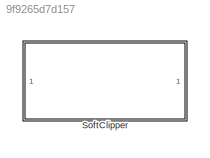
MODEL slx_9f9265d7d157
KIND library
CONFIG AbsTol = auto
CONFIG EnableMultiTasking = off
CONFIG FixedStep = auto
CONFIG MaxStep = auto
CONFIG MinStep = auto
CONFIG RelTol = 1e-3
CONFIG SampleTimeConstraint = Unconstrained
CONFIG SolverName = VariableStepAuto
CONFIG StartTime = 0.0
CONFIG StopTime = 10.0
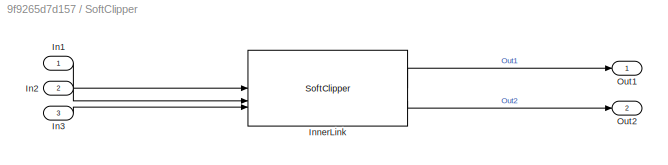
BLOCK [SubSystem] SoftClipper
BLOCK [Inport] SoftClipper/In1
BLOCK [Inport] SoftClipper/In2
  Port = 2
BLOCK [Inport] SoftClipper/In3
  Port = 3
BLOCK [Reference] SoftClipper/InnerLink  REF=SoftclipperBtc/SoftClipper
  SourceBlock = SoftclipperBtc/SoftClipper
  SourceProductName = Bose Blocklib
  SourceType = Blocklib SoftClipper
BLOCK [Outport] SoftClipper/Out1
BLOCK [Outport] SoftClipper/Out2
  Port = 2
LINE SoftClipper/In1:1 -> SoftClipper/InnerLink:1
LINE SoftClipper/In2:1 -> SoftClipper/InnerLink:2
LINE SoftClipper/In3:1 -> SoftClipper/InnerLink:3
LINE SoftClipper/InnerLink:1 -> SoftClipper/Out1:1
LINE SoftClipper/InnerLink:2 -> SoftClipper/Out2:1
